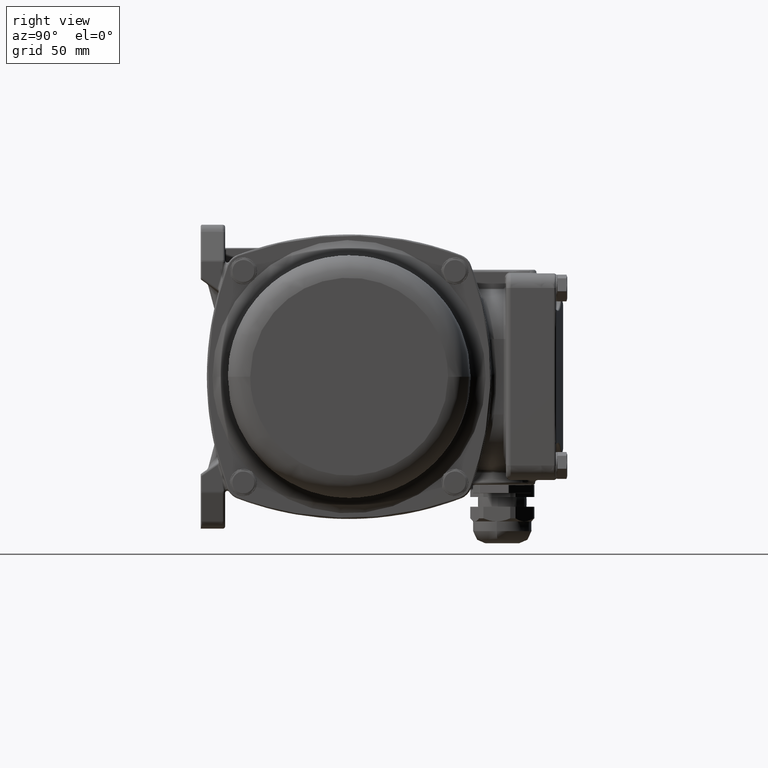
[diagram: clean part render]
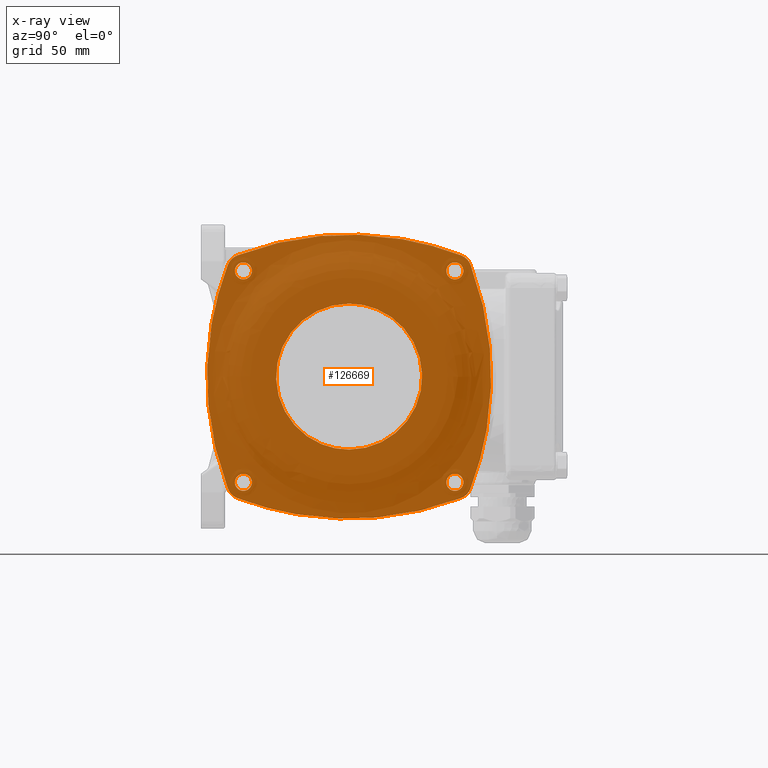
[diagram: x-ray — body ghosted, one internal face saturated and labeled with its STEP entity id]
A machine part, right view, then the same camera in x-ray: the body is ghosted and one INTERNAL B-rep face — a face not visible from any outside direction — is saturated and labeled: STEP entity #126669.
In plain terms, the highlighted planar face has unit normal (-1, 0, -0).
Its self-contained STEP definition (entity closure, byte-faithful):
#2073 = CARTESIAN_POINT ( 'NONE',  ( 10.99998712874185400, 1.433284941355264400, 45.94597739378703900 ) ) ;
#4966 = CARTESIAN_POINT ( 'NONE',  ( 10.99998712874184500, -1.233260152531577600, 49.31997628627682700 ) ) ;
#8053 = ORIENTED_EDGE ( 'NONE', *, *, #55467, .F. ) ;
#9132 = CARTESIAN_POINT ( 'NONE',  ( 10.99998712874196400, -71.98513380742355100, -56.97112740944673700 ) ) ;
#10146 = B_SPLINE_CURVE_WITH_KNOTS ( 'NONE', 3,
 ( #98046, #164126, #197873, #96590, #63536, #128910, #97305, #196445, #29798, #130365, #95875, #131092, #212650, #214100, #162671, #214815, #114216, #45217, #47402, #113454, #62832, #182463 ),
 .UNSPECIFIED., .F., .F.,
 ( 4, 1, 1, 1, 1, 1, 1, 1, 1, 1, 1, 1, 1, 1, 1, 1, 1, 1, 1, 4 ),
 ( 0.0000000000000000000, 0.03124411263210584800, 0.06248822526421152200, 0.07031102957702892200, 0.07813383388984615500, 0.1015834010075117000, 0.1250329681251778100, 0.1406738645860079700, 0.1563147610468383100, 0.1875588736789438000, 0.2188029863110495000, 0.2500470989431549700, 0.2812912115752606600, 0.3125353242073664100, 0.3437794368394719300, 0.3750235494715775100, 0.4062676621036831500, 0.4375117747357886700, 0.4687558873678943100, 0.5000000000000000000 ),
 .UNSPECIFIED. ) ;
#11149 = CARTESIAN_POINT ( 'NONE',  ( 10.99998712874193200, -92.44228955801683900, -46.98706698378283200 ) ) ;
#11246 = VERTEX_POINT ( 'NONE', #75664 ) ;
#11718 = CARTESIAN_POINT ( 'NONE',  ( 10.99998712874184500, -42.60347079148117200, 29.64192276092297400 ) ) ;
#12851 = CARTESIAN_POINT ( 'NONE',  ( 10.99998712874185400, 1.433284941355264400, 45.94597739378703900 ) ) ;
#13339 = DIRECTION ( 'NONE',  ( 8.161726999999996200E-016, 0.9999999999999915600, -1.300225079999999300E-007 ) ) ;
#14335 = CARTESIAN_POINT ( 'NONE',  ( 10.99998712874194200, -90.61148195182936100, -46.80482877236619300 ) ) ;
#15371 = B_SPLINE_CURVE_WITH_KNOTS ( 'NONE', 3,
 ( #31521, #215795, #166560, #116664, #50559, #99060, #16815, #65999, #16069, #83591, #216537 ),
 .UNSPECIFIED., .F., .F.,
 ( 4, 1, 1, 1, 1, 1, 1, 1, 4 ),
 ( 0.0000000000000000000, 0.001368294664057383000, 0.002736589328114762100, 0.004104883992172142300, 0.005473178656229524300, 0.006841473320286906200, 0.008209767984344288100, 0.009578062648401665700, 0.01094635731245904900 ),
 .UNSPECIFIED. ) ;
#16030 = EDGE_CURVE ( 'NONE', #68963, #17832, #167229, .T. ) ;
#16069 = CARTESIAN_POINT ( 'NONE',  ( 10.99998712874199600, -8.330705637474569200, -42.11281563062404800 ) ) ;
#16380 = EDGE_CURVE ( 'NONE', #26310, #94140, #209053, .T. ) ;
#16724 = CARTESIAN_POINT ( 'NONE',  ( 10.99998712874177500, -95.30482877236774200, 42.11147064323634500 ) ) ;
#16815 = CARTESIAN_POINT ( 'NONE',  ( 10.99998712874199400, -6.387205665190368400, -40.16930974326322000 ) ) ;
#17243 = EDGE_CURVE ( 'NONE', #156022, #26310, #190095, .T. ) ;
#17376 = CARTESIAN_POINT ( 'NONE',  ( 10.99998712874193500, -96.90164550824702900, -48.40163292164194800 ) ) ;
#17832 = VERTEX_POINT ( 'NONE', #76659 ) ;
#18040 = ORIENTED_EDGE ( 'NONE', *, *, #175076, .F. ) ;
#18784 = CARTESIAN_POINT ( 'NONE',  ( 10.99998712874193000, -98.26106710436882000, -46.39743462868052900 ) ) ;
#22428 = CARTESIAN_POINT ( 'NONE',  ( 10.99998712874186800, -6.387195677968915000, 40.16929436252698300 ) ) ;
#22836 = CARTESIAN_POINT ( 'NONE',  ( 10.99998712874192300, -91.98707789648834400, -39.98706704297053000 ) ) ;
#22871 = CARTESIAN_POINT ( 'NONE',  ( 10.99998712874192300, -91.98707789648834400, -39.98706704297053000 ) ) ;
#23150 = CARTESIAN_POINT ( 'NONE',  ( 10.99998712874187000, -5.471020841958794500, 39.98705579394079700 ) ) ;
#23333 = CARTESIAN_POINT ( 'NONE',  ( 10.99998712874177400, -95.76673833064583600, 49.31998857775671800 ) ) ;
#23419 = CARTESIAN_POINT ( 'NONE',  ( 10.99998712874183800, -107.6144432476886400, 2.031911738712033300E-006 ) ) ;
#24519 = CARTESIAN_POINT ( 'NONE',  ( 10.99998712874198700, -48.50001334050467200, -59.11444324768713400 ) ) ;
#26245 = B_SPLINE_CURVE_WITH_KNOTS ( 'NONE', 3,
 ( #137742, #54067, #190516, #70944, #188389, #205282, #71676, #140605, #22428, #23150, #139873 ),
 .UNSPECIFIED., .F., .F.,
 ( 4, 1, 1, 1, 1, 1, 1, 1, 4 ),
 ( 0.0000000000000000000, 0.001368294664057386300, 0.002736589328114768600, 0.004104883992172151900, 0.005473178656229537300, 0.006841473320286922700, 0.008209767984344307200, 0.009578062648401690000, 0.01094635731245907500 ),
 .UNSPECIFIED. ) ;
#26310 = VERTEX_POINT ( 'NONE', #48809 ) ;
#27301 = CARTESIAN_POINT ( 'NONE',  ( 10.99998712874191900, -94.52638094283585700, -40.94776195694703300 ) ) ;
#29320 = CARTESIAN_POINT ( 'NONE',  ( 10.99998712874194600, -27.12972720002617800, -21.37028969833697500 ) ) ;
#29778 = CARTESIAN_POINT ( 'NONE',  ( 10.99998712874200300, -2.473639839885785700, -46.02602572541756800 ) ) ;
#29798 = CARTESIAN_POINT ( 'NONE',  ( 10.99998712874183900, -71.74972563028835300, 19.08042122034174400 ) ) ;
#30244 = CARTESIAN_POINT ( 'NONE',  ( 10.99998712874174300, -106.9000980594766500, 58.40010193753862200 ) ) ;
#30806 = CARTESIAN_POINT ( 'NONE',  ( 10.99998712874186400, -30.54699823349450600, 24.20647236194242800 ) ) ;
#31181 = ORIENTED_EDGE ( 'NONE', *, *, #212994, .F. ) ;
#31214 = CARTESIAN_POINT ( 'NONE',  ( 10.99998712874197800, 8.471116100853784300, -23.48513380742198100 ) ) ;
#31521 = CARTESIAN_POINT ( 'NONE',  ( 10.99998712874200500, -1.512944265622491400, -43.48707880664433400 ) ) ;
#31619 = CARTESIAN_POINT ( 'NONE',  ( 10.99998712874176800, -94.44598870238000600, 49.93328494135681000 ) ) ;
#32218 = EDGE_CURVE ( 'NONE', #95608, #156022, #106294, .T. ) ;
#32592 = CARTESIAN_POINT ( 'NONE',  ( 10.99998712874176100, -95.30482841465062900, 44.86266430547926400 ) ) ;
#33447 = CARTESIAN_POINT ( 'NONE',  ( 10.99998712874194200, -89.44813163804865000, -46.02637212894770600 ) ) ;
#33648 = CARTESIAN_POINT ( 'NONE',  ( 10.99998712874177900, -94.52637212894924800, 40.94812032945563400 ) ) ;
#34359 = CARTESIAN_POINT ( 'NONE',  ( 10.99998712874178300, -90.61280564340415800, 40.16929843467178800 ) ) ;
#34756 = EDGE_CURVE ( 'NONE', #106295, #11246, #212740, .T. ) ;
#35532 = EDGE_LOOP ( 'NONE', ( #196485, #123261 ) ) ;
#38127 = CARTESIAN_POINT ( 'NONE',  ( 10.99998712874177200, -98.43328430192420300, 45.94599037868880500 ) ) ;
#38191 = ORIENTED_EDGE ( 'NONE', *, *, #34756, .F. ) ;
#39662 = CARTESIAN_POINT ( 'NONE',  ( 10.99998712874200500, -1.512944265622491400, -43.48707880664433400 ) ) ;
#39764 = CARTESIAN_POINT ( 'NONE',  ( 10.99998712874193700, -91.98707880664586900, -46.98706704297047300 ) ) ;
#40220 = CARTESIAN_POINT ( 'NONE',  ( 10.99998712874177700, -98.26105503894704900, 46.39743626020349200 ) ) ;
#41076 = ORIENTED_EDGE ( 'NONE', *, *, #100599, .F. ) ;
#41155 = ORIENTED_EDGE ( 'NONE', *, *, #168181, .F. ) ;
#42901 = B_SPLINE_CURVE_WITH_KNOTS ( 'NONE', 3,
 ( #31619, #181352, #49938, #132936, #149791, #116764, #98422 ),
 .UNSPECIFIED., .F., .F.,
 ( 4, 1, 1, 1, 4 ),
 ( 0.0000000000000000000, 0.2499999999999999700, 0.5000000000000001100, 0.7499999999999998900, 1.000000000000000000 ),
 .UNSPECIFIED. ) ;
#44467 = CARTESIAN_POINT ( 'NONE',  ( 10.99998712874200100, -6.387206527959523200, -46.80484660249793200 ) ) ;
#45217 = CARTESIAN_POINT ( 'NONE',  ( 10.99998712874192100, -65.29053096576127800, -25.12879553454891400 ) ) ;
#45614 = FACE_BOUND ( 'NONE', #115748, .T. ) ;
#45809 = CARTESIAN_POINT ( 'NONE',  ( 10.99998712874176800, -88.48706698341042900, 43.94515401774796000 ) ) ;
#46208 = CARTESIAN_POINT ( 'NONE',  ( 10.99998712874192600, -18.85858395519341400, -5.896046224557435900 ) ) ;
#46654 = CARTESIAN_POINT ( 'NONE',  ( 10.99998712874199900, -1.512944324810132400, -43.94228955801530400 ) ) ;
#46920 = CARTESIAN_POINT ( 'NONE',  ( 10.99998712874195000, -36.93449650265782200, -27.92162495759576000 ) ) ;
#47371 = CARTESIAN_POINT ( 'NONE',  ( 10.99998712874192300, -91.98707789648834400, -39.98706704297053000 ) ) ;
#47381 = CARTESIAN_POINT ( 'NONE',  ( 10.99998712874200300, -5.012944732545439500, -47.07817189439745700 ) ) ;
#47402 = CARTESIAN_POINT ( 'NONE',  ( 10.99998712874193000, -60.06552206681421100, -27.92162195004180300 ) ) ;
#48227 = ORIENTED_EDGE ( 'NONE', *, *, #182077, .F. ) ;
#48492 = CARTESIAN_POINT ( 'NONE',  ( 10.99998712874184600, -5.012932501948640200, 46.98705573437905500 ) ) ;
#48809 = CARTESIAN_POINT ( 'NONE',  ( 10.99998712874193000, -98.43329624994976300, -45.94598870237847200 ) ) ;
#49938 = CARTESIAN_POINT ( 'NONE',  ( 10.99998712874177000, -71.98511899236649500, 56.97112220804391600 ) ) ;
#50231 = CARTESIAN_POINT ( 'NONE',  ( 10.99998712874201200, 1.433272993329654000, -45.94600168728028000 ) ) ;
#50442 = EDGE_CURVE ( 'NONE', #17832, #68963, #195125, .T. ) ;
#50559 = CARTESIAN_POINT ( 'NONE',  ( 10.99998712874199700, -3.638682003273857800, -40.16922113119559200 ) ) ;
#52632 = CARTESIAN_POINT ( 'NONE',  ( 10.99998712874177900, -95.48706704297202900, 43.48706749805290200 ) ) ;
#54067 = CARTESIAN_POINT ( 'NONE',  ( 10.99998712874185700, -5.468143253319605700, 46.98705579356671800 ) ) ;
#55467 = EDGE_CURVE ( 'NONE', #99721, #208108, #56387, .T. ) ;
#56324 = B_SPLINE_CURVE_WITH_KNOTS ( 'NONE', 3,
 ( #214671, #45809, #213942, #81023, #215406, #100811, #202126, #151467, #32592, #117712, #150741 ),
 .UNSPECIFIED., .F., .F.,
 ( 4, 1, 1, 1, 1, 1, 1, 1, 4 ),
 ( 0.01094635731245905900, 0.01231444180577597300, 0.01368252629909288100, 0.01505061079240979000, 0.01641869528572670300, 0.01778677977904361700, 0.01915486427236052400, 0.02052294876567743700, 0.02189103325899434800 ),
 .UNSPECIFIED. ) ;
#56326 = EDGE_LOOP ( 'NONE', ( #209856, #178831 ) ) ;
#56387 = B_SPLINE_CURVE_WITH_KNOTS ( 'NONE', 3,
 ( #52632, #85688, #16724, #33648, #168610, #68827, #34359, #151786, #185546, #202431, #151060 ),
 .UNSPECIFIED., .F., .F.,
 ( 4, 1, 1, 1, 1, 1, 1, 1, 4 ),
 ( 0.0000000000000000000, 0.001368294664057384300, 0.002736589328114764700, 0.004104883992172145800, 0.005473178656229529500, 0.006841473320286913100, 0.008209767984344295100, 0.009578062648401676100, 0.01094635731245905900 ),
 .UNSPECIFIED. ) ;
#58533 = CARTESIAN_POINT ( 'NONE',  ( 10.99998712874194100, -48.50000955868739500, -30.02857697387566900 ) ) ;
#61916 = CARTESIAN_POINT ( 'NONE',  ( 10.99998712874201500, -2.554022606214567700, -49.93329624994826300 ) ) ;
#62086 = CARTESIAN_POINT ( 'NONE',  ( 10.99998712874199600, -8.330705994844622700, -44.86134020973968700 ) ) ;
#62832 = CARTESIAN_POINT ( 'NONE',  ( 10.99998712874194100, -50.46535865105812500, -30.02857671833602300 ) ) ;
#63069 = CARTESIAN_POINT ( 'NONE',  ( 10.99998712874189400, -20.57792512640249800, 11.56495436288939900 ) ) ;
#63536 = CARTESIAN_POINT ( 'NONE',  ( 10.99998712874183400, -61.34400441512487800, 27.15639260038990300 ) ) ;
#63795 = CARTESIAN_POINT ( 'NONE',  ( 10.99998712874191600, -18.27783122893395500, -4.900905891972972900E-005 ) ) ;
#63903 = CARTESIAN_POINT ( 'NONE',  ( 10.99998712874185700, -3.638671098853288700, 40.16929400515692100 ) ) ;
#65999 = CARTESIAN_POINT ( 'NONE',  ( 10.99998712874199400, -7.552248691312872400, -40.94777509996322400 ) ) ;
#67142 = CARTESIAN_POINT ( 'NONE',  ( 10.99998712874189800, 8.471122208042364900, 23.48510768377348500 ) ) ;
#67397 = VERTEX_POINT ( 'NONE', #189510 ) ;
#68479 = VERTEX_POINT ( 'NONE', #166277 ) ;
#68785 = VERTEX_POINT ( 'NONE', #186601 ) ;
#68827 = CARTESIAN_POINT ( 'NONE',  ( 10.99998712874178300, -91.98706750989504100, 39.89597350014223300 ) ) ;
#68963 = VERTEX_POINT ( 'NONE', #22836 ) ;
#70944 = CARTESIAN_POINT ( 'NONE',  ( 10.99998712874185700, -7.551879670545903700, 46.02636082035630900 ) ) ;
#71676 = CARTESIAN_POINT ( 'NONE',  ( 10.99998712874186200, -8.330701565329750500, 42.11279433481120500 ) ) ;
#71863 = CARTESIAN_POINT ( 'NONE',  ( 10.99998712874177400, -96.90163292164346800, 48.40163419965406200 ) ) ;
#72115 = CARTESIAN_POINT ( 'NONE',  ( 10.99998712874185400, 1.433284941355264400, 45.94597739378703900 ) ) ;
#74747 = CARTESIAN_POINT ( 'NONE',  ( 10.99998712874177400, -94.89743462868206300, 49.76105579577594500 ) ) ;
#75243 = CARTESIAN_POINT ( 'NONE',  ( 10.99998712874194600, -87.14055890772861800, -52.72035375401827700 ) ) ;
#75577 = CARTESIAN_POINT ( 'NONE',  ( 10.99998712874177200, -98.43328430192420300, 45.94599037868880500 ) ) ;
#75664 = CARTESIAN_POINT ( 'NONE',  ( 10.99998712874201200, 1.433272993329654000, -45.94600168728028000 ) ) ;
#75986 = CARTESIAN_POINT ( 'NONE',  ( 10.99998712874193900, -94.44600168728179300, -49.93328430192269000 ) ) ;
#76019 = CARTESIAN_POINT ( 'NONE',  ( 10.99998712874201500, -2.554022606214567700, -49.93329624994826300 ) ) ;
#76659 = CARTESIAN_POINT ( 'NONE',  ( 10.99998712874193700, -91.98707880664586900, -46.98706704297047300 ) ) ;
#77238 = FACE_BOUND ( 'NONE', #132713, .T. ) ;
#78198 = EDGE_CURVE ( 'NONE', #67397, #148135, #10146, .T. ) ;
#80701 = CARTESIAN_POINT ( 'NONE',  ( 10.99998712874187100, -27.56207223991977900, 21.63134362272332500 ) ) ;
#81023 = CARTESIAN_POINT ( 'NONE',  ( 10.99998712874176300, -89.44776195694862500, 46.02636963424288300 ) ) ;
#81146 = CARTESIAN_POINT ( 'NONE',  ( 10.99998712874200500, -1.512944265622491400, -43.48707880664433400 ) ) ;
#82246 = CARTESIAN_POINT ( 'NONE',  ( 10.99998712874185900, -5.012933412106191300, 39.98705573437911200 ) ) ;
#83591 = CARTESIAN_POINT ( 'NONE',  ( 10.99998712874199700, -8.512944206060758700, -43.02899046663418400 ) ) ;
#84600 = CARTESIAN_POINT ( 'NONE',  ( 10.99998712874177900, -95.48706704297202900, 43.48706749805290200 ) ) ;
#84639 = CARTESIAN_POINT ( 'NONE',  ( 10.99998712874184600, -5.012932501948640200, 46.98705573437905500 ) ) ;
#85688 = CARTESIAN_POINT ( 'NONE',  ( 10.99998712874177400, -95.48706710215967100, 43.03185674668193900 ) ) ;
#86192 = B_SPLINE_CURVE_WITH_KNOTS ( 'NONE', 3,
 ( #147059, #212465, #180805, #195527, #180082, #161775, #61916 ),
 .UNSPECIFIED., .F., .F.,
 ( 4, 1, 1, 1, 4 ),
 ( 0.0000000000000000000, 0.2499999999999996100, 0.5000000000000001100, 0.7499999999999998900, 1.000000000000000000 ),
 .UNSPECIFIED. ) ;
#87149 = CARTESIAN_POINT ( 'NONE',  ( 10.99998712874185000, 0.8199885777552057300, 47.26672702205289100 ) ) ;
#89433 = EDGE_LOOP ( 'NONE', ( #8053, #41076 ) ) ;
#89922 = VERTEX_POINT ( 'NONE', #39662 ) ;
#91354 = CARTESIAN_POINT ( 'NONE',  ( 10.99998712874201500, -2.554022606214567700, -49.93329624994826300 ) ) ;
#92479 = EDGE_CURVE ( 'NONE', #11246, #95608, #86192, .T. ) ;
#93140 = CARTESIAN_POINT ( 'NONE',  ( 10.99998712874190900, -101.2203638023012900, -38.64054519806203600 ) ) ;
#94140 = VERTEX_POINT ( 'NONE', #173783 ) ;
#94571 = VERTEX_POINT ( 'NONE', #118495 ) ;
#94674 = CARTESIAN_POINT ( 'NONE',  ( 10.99998712874187700, -25.25028071653704100, 19.08041517436731000 ) ) ;
#94824 = CARTESIAN_POINT ( 'NONE',  ( 10.99998712874191900, -92.44516532634097000, -39.98706698340886600 ) ) ;
#95127 = CARTESIAN_POINT ( 'NONE',  ( 10.99998712874199600, -8.512944325184106400, -43.94516532633939200 ) ) ;
#95537 = FACE_OUTER_BOUND ( 'NONE', #141016, .T. ) ;
#95608 = VERTEX_POINT ( 'NONE', #76019 ) ;
#95875 = CARTESIAN_POINT ( 'NONE',  ( 10.99998712874184800, -76.42208317478086600, 11.56496162388687300 ) ) ;
#96590 = CARTESIAN_POINT ( 'NONE',  ( 10.99998712874183400, -58.65124383070313700, 28.35016811014006800 ) ) ;
#97273 = CARTESIAN_POINT ( 'NONE',  ( 10.99998712874193200, -90.61281563062564700, -40.16930567111839400 ) ) ;
#97305 = CARTESIAN_POINT ( 'NONE',  ( 10.99998712874183600, -66.45300678032549500, 24.20647703053168000 ) ) ;
#97557 = CARTESIAN_POINT ( 'NONE',  ( 10.99998712874185200, -38.34876010557038500, 28.35016547036022100 ) ) ;
#97667 = CARTESIAN_POINT ( 'NONE',  ( 10.99998712874185500, -1.421839414195525500, 43.48705526745610700 ) ) ;
#98046 = CARTESIAN_POINT ( 'NONE',  ( 10.99998712874183900, -48.50000174990709900, 30.02856566528424400 ) ) ;
#98422 = CARTESIAN_POINT ( 'NONE',  ( 10.99998712874184300, -2.554009621312705500, 49.93327299333122900 ) ) ;
#99060 = CARTESIAN_POINT ( 'NONE',  ( 10.99998712874199600, -5.012943798699459400, -39.89598480873367200 ) ) ;
#99721 = VERTEX_POINT ( 'NONE', #84600 ) ;
#99863 = CARTESIAN_POINT ( 'NONE',  ( 10.99998712874185900, -4.554845982253585400, 39.98705567481743400 ) ) ;
#100192 = CARTESIAN_POINT ( 'NONE',  ( 10.99998712874193000, -91.52899046663573300, -39.98706710253221500 ) ) ;
#100313 = CARTESIAN_POINT ( 'NONE',  ( 10.99998712874193900, -94.44600168728179300, -49.93328430192269000 ) ) ;
#100599 = EDGE_CURVE ( 'NONE', #208108, #99721, #56324, .T. ) ;
#100740 = ORIENTED_EDGE ( 'NONE', *, *, #17243, .F. ) ;
#100811 = CARTESIAN_POINT ( 'NONE',  ( 10.99998712874175900, -91.98706657604907400, 47.07816058580601700 ) ) ;
#101383 = EDGE_CURVE ( 'NONE', #68785, #68479, #42901, .T. ) ;
#106294 = B_SPLINE_CURVE_WITH_KNOTS ( 'NONE', 3,
 ( #91354, #159609, #175733, #24519, #9132, #75243, #209585 ),
 .UNSPECIFIED., .F., .F.,
 ( 4, 1, 1, 1, 4 ),
 ( 0.0000000000000000000, 0.2499999999999999200, 0.5000000000000000000, 0.7499999999999998900, 1.000000000000000000 ),
 .UNSPECIFIED. ) ;
#106295 = VERTEX_POINT ( 'NONE', #72115 ) ;
#107022 = CARTESIAN_POINT ( 'NONE',  ( 10.99998712874177500, -97.81998759486978700, 47.26673984746996400 ) ) ;
#107954 = CARTESIAN_POINT ( 'NONE',  ( 10.99998712874199900, -8.512944265622431700, -43.48707789648679500 ) ) ;
#109598 = EDGE_CURVE ( 'NONE', #94571, #125324, #208257, .T. ) ;
#112026 = CARTESIAN_POINT ( 'NONE',  ( 10.99998712874199900, -8.512944265622431700, -43.48707789648679500 ) ) ;
#112295 = CARTESIAN_POINT ( 'NONE',  ( 10.99998712874185900, -33.46217298988575100, 26.05221241431486600 ) ) ;
#112443 = CARTESIAN_POINT ( 'NONE',  ( 10.99998712874192300, -95.57817189439899200, -43.48706657604752500 ) ) ;
#113454 = CARTESIAN_POINT ( 'NONE',  ( 10.99998712874193700, -54.39605678546264000, -29.64143622247761900 ) ) ;
#114216 = CARTESIAN_POINT ( 'NONE',  ( 10.99998712874191000, -69.87028966580342600, -21.37028414110185900 ) ) ;
#114582 = CARTESIAN_POINT ( 'NONE',  ( 10.99998712874184800, -3.637335694522278600, 46.80481710605765500 ) ) ;
#114657 = PLANE ( 'NONE',  #149692 ) ;
#115293 = CARTESIAN_POINT ( 'NONE',  ( 10.99998712874184600, -4.557721750577670200, 46.98705567519141400 ) ) ;
#115634 = EDGE_CURVE ( 'NONE', #148135, #67397, #123253, .T. ) ;
#115748 = EDGE_LOOP ( 'NONE', ( #118246, #199076 ) ) ;
#116366 = CARTESIAN_POINT ( 'NONE',  ( 10.99998712874193900, -88.39598480873525000, -43.48706750989350000 ) ) ;
#116389 = ORIENTED_EDGE ( 'NONE', *, *, #32218, .F. ) ;
#116664 = CARTESIAN_POINT ( 'NONE',  ( 10.99998712874199900, -2.473639179645256800, -40.94813163804707300 ) ) ;
#116764 = CARTESIAN_POINT ( 'NONE',  ( 10.99998712874182700, -9.859452400865873000, 52.72034244542685900 ) ) ;
#117712 = CARTESIAN_POINT ( 'NONE',  ( 10.99998712874176100, -95.48706698378443000, 43.94227824942387200 ) ) ;
#118246 = ORIENTED_EDGE ( 'NONE', *, *, #78198, .F. ) ;
#118495 = CARTESIAN_POINT ( 'NONE',  ( 10.99998712874185900, -5.012933412106191300, 39.98705573437911200 ) ) ;
#119214 = EDGE_CURVE ( 'NONE', #125324, #94571, #26245, .T. ) ;
#122430 = CARTESIAN_POINT ( 'NONE',  ( 10.99998712874184800, -0.09836580034745792700, 48.40162161305048000 ) ) ;
#123253 = B_SPLINE_CURVE_WITH_KNOTS ( 'NONE', 3,
 ( #146066, #147499, #196699, #46920, #129884, #29320, #164390, #212898, #46208, #63795, #198137, #63069, #181249, #94674, #80701, #30806, #112295, #212190, #97557, #11718, #215074, #148238 ),
 .UNSPECIFIED., .F., .F.,
 ( 4, 1, 1, 1, 1, 1, 1, 1, 1, 1, 1, 1, 1, 1, 1, 1, 1, 1, 1, 4 ),
 ( 0.5000000000000000000, 0.5312441126321055800, 0.5624882252642112700, 0.5937323378963168500, 0.6249764505284225400, 0.6562205631605281300, 0.6874646757926337100, 0.7187087884247392900, 0.7499529010568448700, 0.7811970136889505600, 0.8124411263210562500, 0.8436852389531617200, 0.8593261354139920500, 0.8749670318748221700, 0.8984165989924881600, 0.9218661661101540400, 0.9296889704229713800, 0.9375117747357887300, 0.9687558873678944200, 1.000000000000000000 ),
 .UNSPECIFIED. ) ;
#123261 = ORIENTED_EDGE ( 'NONE', *, *, #109598, .F. ) ;
#125324 = VERTEX_POINT ( 'NONE', #84639 ) ;
#125478 = CARTESIAN_POINT ( 'NONE',  ( 10.99998712874180000, -105.4711274094482400, 23.48512249883055200 ) ) ;
#126669 = ADVANCED_FACE ( 'NONE', ( #153286, #211231, #166532, #77238, #45614, #95537 ), #114657, .F. ) ;
#128910 = CARTESIAN_POINT ( 'NONE',  ( 10.99998712874183400, -63.53783154395883800, 26.05221632482741600 ) ) ;
#129884 = CARTESIAN_POINT ( 'NONE',  ( 10.99998712874195000, -31.70948687745039200, -25.12879990084048700 ) ) ;
#130365 = CARTESIAN_POINT ( 'NONE',  ( 10.99998712874184300, -74.09234725075420200, 15.92235189551887900 ) ) ;
#131092 = CARTESIAN_POINT ( 'NONE',  ( 10.99998712874185700, -78.14131263794379800, 5.896192616752274200 ) ) ;
#131911 = VERTEX_POINT ( 'NONE', #107954 ) ;
#132537 = CARTESIAN_POINT ( 'NONE',  ( 10.99998712874193500, -88.66930974326480500, -42.11280564340261600 ) ) ;
#132713 = EDGE_LOOP ( 'NONE', ( #48227, #18040 ) ) ;
#132936 = CARTESIAN_POINT ( 'NONE',  ( 10.99998712874178600, -48.49999796808980800, 59.11443193909570200 ) ) ;
#133942 = CARTESIAN_POINT ( 'NONE',  ( 10.99998712874187000, 4.220352493706822200, 38.64053388947059600 ) ) ;
#134803 = CARTESIAN_POINT ( 'NONE',  ( 10.99998712874193200, -97.81999988634967700, -47.26673833064431600 ) ) ;
#137742 = CARTESIAN_POINT ( 'NONE',  ( 10.99998712874184600, -5.012932501948640200, 46.98705573437905500 ) ) ;
#139245 = CARTESIAN_POINT ( 'NONE',  ( 10.99998712874184300, -2.554009621312705500, 49.93327299333122900 ) ) ;
#139873 = CARTESIAN_POINT ( 'NONE',  ( 10.99998712874185900, -5.012933412106191300, 39.98705573437911200 ) ) ;
#140323 = CARTESIAN_POINT ( 'NONE',  ( 10.99998712874192500, -95.30493592930699300, -44.86132844252680500 ) ) ;
#140605 = CARTESIAN_POINT ( 'NONE',  ( 10.99998712874186600, -7.552236208629751400, 40.94775130868870100 ) ) ;
#140843 = ORIENTED_EDGE ( 'NONE', *, *, #16380, .F. ) ;
#141016 = EDGE_LOOP ( 'NONE', ( #201548, #41155, #140843, #100740, #116389, #173719, #38191, #31181 ) ) ;
#144754 = CARTESIAN_POINT ( 'NONE',  ( 10.99998712874192800, -94.52602572541911700, -46.02637146870718300 ) ) ;
#146066 = CARTESIAN_POINT ( 'NONE',  ( 10.99998712874194100, -48.50000955868739500, -30.02857697387566900 ) ) ;
#147059 = CARTESIAN_POINT ( 'NONE',  ( 10.99998712874201200, 1.433272993329654000, -45.94600168728028000 ) ) ;
#147218 = CARTESIAN_POINT ( 'NONE',  ( 10.99998712874200100, -1.695182893943867300, -44.86267561407069600 ) ) ;
#147499 = CARTESIAN_POINT ( 'NONE',  ( 10.99998712874194600, -46.53466046631668700, -30.02857722941525200 ) ) ;
#148135 = VERTEX_POINT ( 'NONE', #58533 ) ;
#148238 = CARTESIAN_POINT ( 'NONE',  ( 10.99998712874183900, -48.50000174990709900, 30.02856566528424400 ) ) ;
#149692 = AXIS2_PLACEMENT_3D ( 'NONE', #30244, #166003, #13339 ) ;
#149791 = CARTESIAN_POINT ( 'NONE',  ( 10.99998712874180700, -25.01487750117100400, 56.97111610085530500 ) ) ;
#150741 = CARTESIAN_POINT ( 'NONE',  ( 10.99998712874177900, -95.48706704297202900, 43.48706749805290200 ) ) ;
#151060 = CARTESIAN_POINT ( 'NONE',  ( 10.99998712874178100, -88.48706704297205800, 43.48706658789534900 ) ) ;
#151467 = CARTESIAN_POINT ( 'NONE',  ( 10.99998712874175900, -94.52637146870871700, 46.02601441682613600 ) ) ;
#151786 = CARTESIAN_POINT ( 'NONE',  ( 10.99998712874178300, -89.44776261728165400, 40.94776379137179100 ) ) ;
#153286 = FACE_BOUND ( 'NONE', #35532, .T. ) ;
#154014 = CARTESIAN_POINT ( 'NONE',  ( 10.99998712874184500, -2.102563739798016100, 49.76104373035407500 ) ) ;
#156022 = VERTEX_POINT ( 'NONE', #75986 ) ;
#156494 = CARTESIAN_POINT ( 'NONE',  ( 10.99998712874191900, -95.30484660249946700, -42.11280478063344600 ) ) ;
#157063 = CARTESIAN_POINT ( 'NONE',  ( 10.99998712874187800, -105.4711335166368500, -23.48511899236494900 ) ) ;
#159232 = CARTESIAN_POINT ( 'NONE',  ( 10.99998712874177700, -101.2203537540198000, 38.64054759913565800 ) ) ;
#159609 = CARTESIAN_POINT ( 'NONE',  ( 10.99998712874200800, -9.859466110530986400, -52.72036380229980100 ) ) ;
#161775 = CARTESIAN_POINT ( 'NONE',  ( 10.99998712874201500, -2.102576679912524100, -49.76106710436742700 ) ) ;
#162651 = CARTESIAN_POINT ( 'NONE',  ( 10.99998712874200300, -3.638682866066139900, -46.80493592930545800 ) ) ;
#162671 = CARTESIAN_POINT ( 'NONE',  ( 10.99998712874188700, -76.42162732051650700, -11.56551762434451500 ) ) ;
#163747 = CARTESIAN_POINT ( 'NONE',  ( 10.99998712874185900, -2.473630365758657100, 40.94775064835562300 ) ) ;
#164126 = CARTESIAN_POINT ( 'NONE',  ( 10.99998712874183800, -50.46221154252543100, 30.02856592041564800 ) ) ;
#164390 = CARTESIAN_POINT ( 'NONE',  ( 10.99998712874194100, -23.37121635663990900, -16.79053025302343400 ) ) ;
#164835 = CARTESIAN_POINT ( 'NONE',  ( 10.99998712874194100, -88.66922113119717600, -44.86132930531913100 ) ) ;
#166003 = DIRECTION ( 'NONE',  ( -1.000000000000000000, 8.161724775916957700E-016, -1.710536999999997200E-015 ) ) ;
#166277 = CARTESIAN_POINT ( 'NONE',  ( 10.99998712874184300, -2.554009621312705500, 49.93327299333122900 ) ) ;
#166532 = FACE_BOUND ( 'NONE', #56326, .T. ) ;
#166560 = CARTESIAN_POINT ( 'NONE',  ( 10.99998712874200100, -1.695182536226774700, -42.11148195182777700 ) ) ;
#167116 = CARTESIAN_POINT ( 'NONE',  ( 10.99998712874193000, -98.43329624994976300, -45.94598870237847200 ) ) ;
#167229 = B_SPLINE_CURVE_WITH_KNOTS ( 'NONE', 3,
 ( #22871, #94824, #211620, #27301, #156494, #112443, #140323, #144754, #193948, #11149, #39764 ),
 .UNSPECIFIED., .F., .F.,
 ( 4, 1, 1, 1, 1, 1, 1, 1, 4 ),
 ( 0.01094635731245891100, 0.01231444180577584900, 0.01368252629909278200, 0.01505061079240971700, 0.01641869528572665500, 0.01778677977904358900, 0.01915486427236052400, 0.02052294876567745800, 0.02189103325899439600 ),
 .UNSPECIFIED. ) ;
#168181 = EDGE_CURVE ( 'NONE', #94140, #68785, #213799, .T. ) ;
#168379 = CARTESIAN_POINT ( 'NONE',  ( 10.99998712874200100, 4.220342445425309600, -38.64055890772713300 ) ) ;
#168610 = CARTESIAN_POINT ( 'NONE',  ( 10.99998712874178100, -93.36132930532066600, 40.16920982260415200 ) ) ;
#170832 = CARTESIAN_POINT ( 'NONE',  ( 10.99998712874178100, -88.48706704297205800, 43.48706658789534900 ) ) ;
#173719 = ORIENTED_EDGE ( 'NONE', *, *, #92479, .F. ) ;
#173783 = CARTESIAN_POINT ( 'NONE',  ( 10.99998712874177200, -98.43328430192420300, 45.94599037868880500 ) ) ;
#174531 = CARTESIAN_POINT ( 'NONE',  ( 10.99998712874176800, -94.44598870238000600, 49.93328494135681000 ) ) ;
#175076 = EDGE_CURVE ( 'NONE', #131911, #89922, #210819, .T. ) ;
#175733 = CARTESIAN_POINT ( 'NONE',  ( 10.99998712874200300, -25.01489231622810600, -56.97113351663534800 ) ) ;
#178831 = ORIENTED_EDGE ( 'NONE', *, *, #16030, .F. ) ;
#180082 = CARTESIAN_POINT ( 'NONE',  ( 10.99998712874201500, -1.233272977948743900, -49.31999988634814300 ) ) ;
#180805 = CARTESIAN_POINT ( 'NONE',  ( 10.99998712874201300, 0.8199762862752049100, -47.26675115606140300 ) ) ;
#180963 = CARTESIAN_POINT ( 'NONE',  ( 10.99998712874193400, -89.44777509996480100, -40.94776261728009100 ) ) ;
#181249 = CARTESIAN_POINT ( 'NONE',  ( 10.99998712874188400, -22.90765991731141300, 15.92234524035745700 ) ) ;
#181352 = CARTESIAN_POINT ( 'NONE',  ( 10.99998712874176500, -87.14054519806357700, 52.72035249370836100 ) ) ;
#181356 = CARTESIAN_POINT ( 'NONE',  ( 10.99998712874185700, -1.695164706095042600, 42.11279347204202800 ) ) ;
#182077 = EDGE_CURVE ( 'NONE', #89922, #131911, #15371, .T. ) ;
#182396 = CARTESIAN_POINT ( 'NONE',  ( 10.99998712874194100, 10.61443193909416400, -1.334050318527145600E-005 ) ) ;
#182463 = CARTESIAN_POINT ( 'NONE',  ( 10.99998712874194100, -48.50000955868739500, -30.02857697387566900 ) ) ;
#185546 = CARTESIAN_POINT ( 'NONE',  ( 10.99998712874178100, -88.66930567111994300, 42.11280432203262300 ) ) ;
#186601 = CARTESIAN_POINT ( 'NONE',  ( 10.99998712874176800, -94.44598870238000600, 49.93328494135681000 ) ) ;
#188389 = CARTESIAN_POINT ( 'NONE',  ( 10.99998712874185700, -8.330790177397386000, 44.86131799672769900 ) ) ;
#189179 = CARTESIAN_POINT ( 'NONE',  ( 10.99998712874185400, 1.261055795774415500, 46.39742332008906800 ) ) ;
#189510 = CARTESIAN_POINT ( 'NONE',  ( 10.99998712874183900, -48.50000174990709900, 30.02856566528424400 ) ) ;
#190095 = B_SPLINE_CURVE_WITH_KNOTS ( 'NONE', 3,
 ( #100313, #217104, #201648, #17376, #134803, #18784, #167116 ),
 .UNSPECIFIED., .F., .F.,
 ( 4, 1, 1, 1, 4 ),
 ( 0.0000000000000000000, 0.2499999999999997200, 0.4999999999999993300, 0.7499999999999995600, 1.000000000000000000 ),
 .UNSPECIFIED. ) ;
#190516 = CARTESIAN_POINT ( 'NONE',  ( 10.99998712874185700, -6.388529356765198000, 46.80481746377478200 ) ) ;
#193705 = CARTESIAN_POINT ( 'NONE',  ( 10.99998712874193000, -98.43329624994976300, -45.94598870237847200 ) ) ;
#193948 = CARTESIAN_POINT ( 'NONE',  ( 10.99998712874193000, -93.36267561407224500, -46.80482841464910100 ) ) ;
#195125 = B_SPLINE_CURVE_WITH_KNOTS ( 'NONE', 3,
 ( #199310, #217695, #14335, #33447, #164835, #116366, #132537, #180963, #97273, #100192, #47371 ),
 .UNSPECIFIED., .F., .F.,
 ( 4, 1, 1, 1, 1, 1, 1, 1, 4 ),
 ( 0.0000000000000000000, 0.001368294664057365900, 0.002736589328114727900, 0.004104883992172090300, 0.005473178656229455700, 0.006841473320286821200, 0.008209767984344184000, 0.009578062648401546000, 0.01094635731245891100 ),
 .UNSPECIFIED. ) ;
#195527 = CARTESIAN_POINT ( 'NONE',  ( 10.99998712874201300, -0.09837838695107153900, -48.40164550824555100 ) ) ;
#196428 = CARTESIAN_POINT ( 'NONE',  ( 10.99998712874199700, -7.552249351645931700, -46.02638094283432200 ) ) ;
#196445 = CARTESIAN_POINT ( 'NONE',  ( 10.99998712874183800, -69.43793344354941200, 21.63134906752784700 ) ) ;
#196485 = ORIENTED_EDGE ( 'NONE', *, *, #119214, .F. ) ;
#196699 = CARTESIAN_POINT ( 'NONE',  ( 10.99998712874194800, -42.60396223123833400, -29.64143775571531900 ) ) ;
#197873 = CARTESIAN_POINT ( 'NONE',  ( 10.99998712874183600, -54.39653280887738200, 29.64192429428648600 ) ) ;
#198137 = CARTESIAN_POINT ( 'NONE',  ( 10.99998712874190500, -18.85869713737476200, 5.896184908677902600 ) ) ;
#199076 = ORIENTED_EDGE ( 'NONE', *, *, #115634, .F. ) ;
#199310 = CARTESIAN_POINT ( 'NONE',  ( 10.99998712874193700, -91.98707880664586900, -46.98706704297047300 ) ) ;
#201548 = ORIENTED_EDGE ( 'NONE', *, *, #101383, .F. ) ;
#201648 = CARTESIAN_POINT ( 'NONE',  ( 10.99998712874193700, -95.76675115606286700, -49.31998759486823800 ) ) ;
#202126 = CARTESIAN_POINT ( 'NONE',  ( 10.99998712874175900, -93.36132844252838900, 46.80492462071402600 ) ) ;
#202431 = CARTESIAN_POINT ( 'NONE',  ( 10.99998712874177900, -88.48706710253377100, 43.02897915804273800 ) ) ;
#205282 = CARTESIAN_POINT ( 'NONE',  ( 10.99998712874186100, -8.604026499859307000, 43.48705620130207400 ) ) ;
#207274 = B_SPLINE_CURVE_WITH_KNOTS ( 'NONE', 3,
 ( #139245, #154014, #4966, #122430, #87149, #189179, #2073 ),
 .UNSPECIFIED., .F., .F.,
 ( 4, 1, 1, 1, 4 ),
 ( 0.0000000000000000000, 0.2500000000000000600, 0.4999999999999994400, 0.7499999999999997800, 1.000000000000000000 ),
 .UNSPECIFIED. ) ;
#208108 = VERTEX_POINT ( 'NONE', #170832 ) ;
#208257 = B_SPLINE_CURVE_WITH_KNOTS ( 'NONE', 3,
 ( #82246, #99863, #63903, #163747, #181356, #97667, #215899, #216647, #114582, #115293, #48492 ),
 .UNSPECIFIED., .F., .F.,
 ( 4, 1, 1, 1, 1, 1, 1, 1, 4 ),
 ( 0.01094635731245907500, 0.01231444180577603000, 0.01368252629909298200, 0.01505061079240993500, 0.01641869528572689100, 0.01778677977904384600, 0.01915486427236079400, 0.02052294876567775000, 0.02189103325899470500 ),
 .UNSPECIFIED. ) ;
#209053 = B_SPLINE_CURVE_WITH_KNOTS ( 'NONE', 3,
 ( #193705, #93140, #157063, #23419, #125478, #159232, #75577 ),
 .UNSPECIFIED., .F., .F.,
 ( 4, 1, 1, 1, 4 ),
 ( 0.0000000000000000000, 0.2499999999999999200, 0.5000000000000001100, 0.7499999999999998900, 1.000000000000000000 ),
 .UNSPECIFIED. ) ;
#209585 = CARTESIAN_POINT ( 'NONE',  ( 10.99998712874193900, -94.44600168728179300, -49.93328430192269000 ) ) ;
#209856 = ORIENTED_EDGE ( 'NONE', *, *, #50442, .F. ) ;
#210819 = B_SPLINE_CURVE_WITH_KNOTS ( 'NONE', 3,
 ( #112026, #95127, #62086, #196428, #44467, #47381, #162651, #29778, #147218, #46654, #81146 ),
 .UNSPECIFIED., .F., .F.,
 ( 4, 1, 1, 1, 1, 1, 1, 1, 4 ),
 ( 0.01094635731245904900, 0.01231444180577599000, 0.01368252629909293000, 0.01505061079240986900, 0.01641869528572681100, 0.01778677977904375200, 0.01915486427236069000, 0.02052294876567763200, 0.02189103325899457300 ),
 .UNSPECIFIED. ) ;
#211231 = FACE_BOUND ( 'NONE', #89433, .T. ) ;
#211620 = CARTESIAN_POINT ( 'NONE',  ( 10.99998712874191800, -93.36134020974125700, -40.16930531374833900 ) ) ;
#212190 = CARTESIAN_POINT ( 'NONE',  ( 10.99998712874185500, -35.65599983158404000, 27.15638926037112500 ) ) ;
#212465 = CARTESIAN_POINT ( 'NONE',  ( 10.99998712874201200, 1.261043730352560100, -46.39744756879498100 ) ) ;
#212650 = CARTESIAN_POINT ( 'NONE',  ( 10.99998712874186800, -78.72218007967083500, -4.114993311572992900E-005 ) ) ;
#212740 = B_SPLINE_CURVE_WITH_KNOTS ( 'NONE', 3,
 ( #12851, #133942, #67142, #182396, #31214, #168379, #50231 ),
 .UNSPECIFIED., .F., .F.,
 ( 4, 1, 1, 1, 4 ),
 ( 0.0000000000000000000, 0.2500000000000000600, 0.5000000000000000000, 0.7500000000000001100, 1.000000000000000000 ),
 .UNSPECIFIED. ) ;
#212898 = CARTESIAN_POINT ( 'NONE',  ( 10.99998712874193400, -20.57838699563269500, -11.56552488522268800 ) ) ;
#212994 = EDGE_CURVE ( 'NONE', #68479, #106295, #207274, .T. ) ;
#213799 = B_SPLINE_CURVE_WITH_KNOTS ( 'NONE', 3,
 ( #38127, #40220, #107022, #71863, #23333, #74747, #174531 ),
 .UNSPECIFIED., .F., .F.,
 ( 4, 1, 1, 1, 4 ),
 ( 0.0000000000000000000, 0.2500000000000010000, 0.5000000000000005600, 0.7500000000000005600, 1.000000000000000000 ),
 .UNSPECIFIED. ) ;
#213942 = CARTESIAN_POINT ( 'NONE',  ( 10.99998712874176700, -88.66930531374988800, 44.86132890114826200 ) ) ;
#214100 = CARTESIAN_POINT ( 'NONE',  ( 10.99998712874187700, -78.14142888663606400, -5.896038516453284500 ) ) ;
#214671 = CARTESIAN_POINT ( 'NONE',  ( 10.99998712874178100, -88.48706704297205800, 43.48706658789534900 ) ) ;
#214815 = CARTESIAN_POINT ( 'NONE',  ( 10.99998712874190000, -73.62879931824596700, -16.79052371840648000 ) ) ;
#215074 = CARTESIAN_POINT ( 'NONE',  ( 10.99998712874184100, -46.53779195728876800, 30.02856541015277300 ) ) ;
#215406 = CARTESIAN_POINT ( 'NONE',  ( 10.99998712874176100, -90.61280478063498800, 46.80483529390650000 ) ) ;
#215795 = CARTESIAN_POINT ( 'NONE',  ( 10.99998712874200300, -1.512944206434843500, -43.03186805527337100 ) ) ;
#215899 = CARTESIAN_POINT ( 'NONE',  ( 10.99998712874185400, -1.695075379287515300, 44.86131713393541500 ) ) ;
#216537 = CARTESIAN_POINT ( 'NONE',  ( 10.99998712874199900, -8.512944265622431700, -43.48707789648679500 ) ) ;
#216647 = CARTESIAN_POINT ( 'NONE',  ( 10.99998712874185000, -2.473985583175401600, 46.02636016011575700 ) ) ;
#217104 = CARTESIAN_POINT ( 'NONE',  ( 10.99998712874193900, -94.89744756879648000, -49.76105503894558500 ) ) ;
#217695 = CARTESIAN_POINT ( 'NONE',  ( 10.99998712874194200, -91.53186805527495600, -46.98706710215813600 ) ) ;